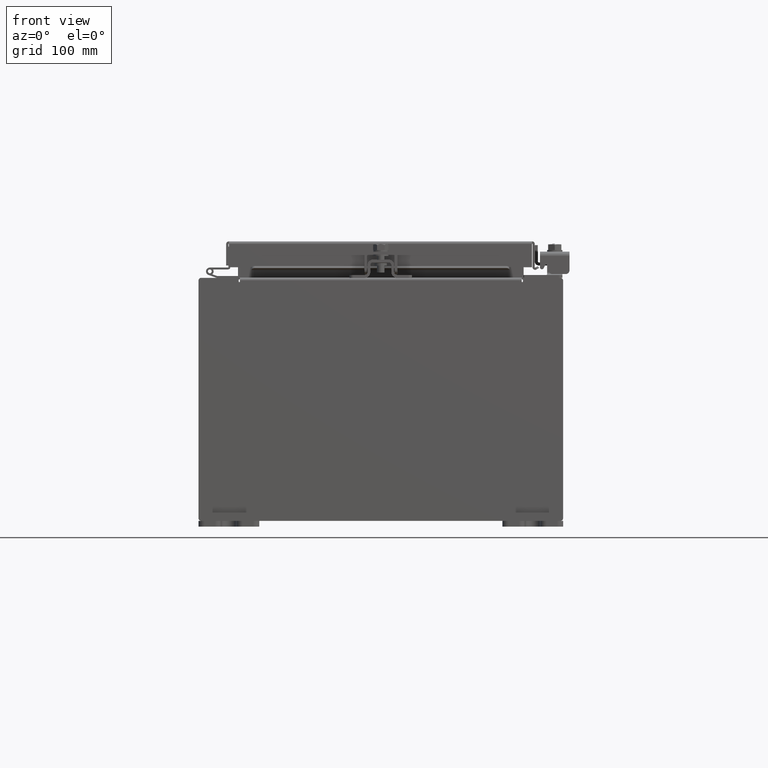
[diagram: clean part render]
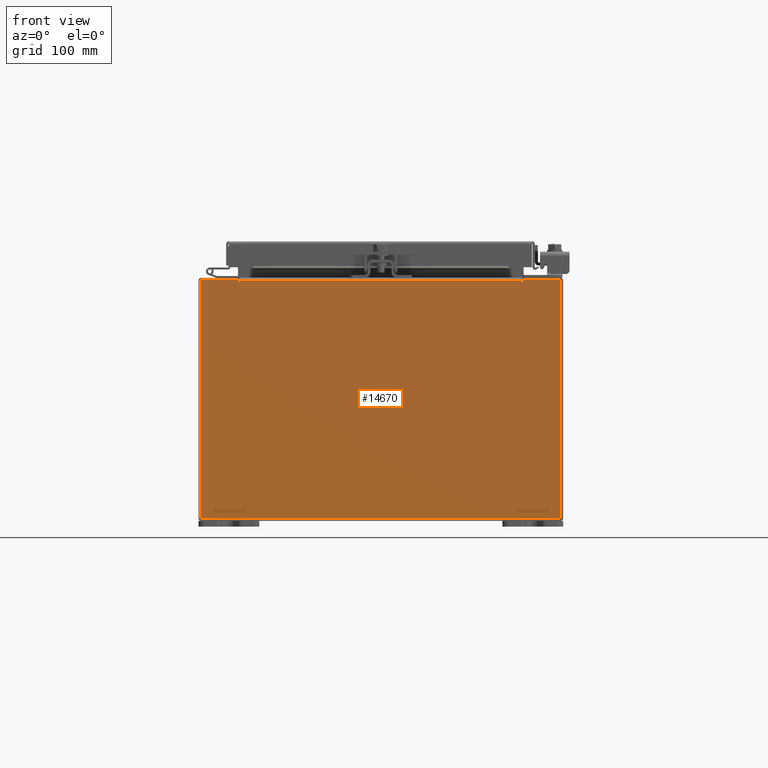
[diagram: same view with one face highlighted and labeled with its STEP entity id]
A machine part, front view. The second image highlights one B-rep face of the part: STEP entity #14670.
In plain terms, the highlighted planar face has unit normal (-0, 1, -0).
Its self-contained STEP definition (entity closure, byte-faithful):
#280 = CIRCLE ( 'NONE', #15276, 0.01867500000000003900 ) ;
#332 = CARTESIAN_POINT ( 'NONE',  ( 4.655875000000002700, 0.0000000000000000000, 3.874949999999999200 ) ) ;
#836 = EDGE_CURVE ( 'NONE', #10174, #17882, #24405, .T. ) ;
#1635 = VERTEX_POINT ( 'NONE', #9276 ) ;
#1908 = CARTESIAN_POINT ( 'NONE',  ( 4.674549999999960900, -0.0000000000000000000, -5.072556122654668400E-014 ) ) ;
#2111 = VERTEX_POINT ( 'NONE', #19707 ) ;
#2322 = DIRECTION ( 'NONE',  ( 0.0000000000000000000, 0.0000000000000000000, -1.000000000000000000 ) ) ;
#2680 = VECTOR ( 'NONE', #24658, 39.37007874015748100 ) ;
#2798 = CARTESIAN_POINT ( 'NONE',  ( 5.925300000000002700, 0.0000000000000000000, -3.925300000000000500 ) ) ;
#3118 = LINE ( 'NONE', #6267, #18511 ) ;
#3466 = LINE ( 'NONE', #15335, #24220 ) ;
#3796 = AXIS2_PLACEMENT_3D ( 'NONE', #332, #14362, #2322 ) ;
#4779 = LINE ( 'NONE', #23692, #9491 ) ;
#5107 = DIRECTION ( 'NONE',  ( -0.0000000000000000000, 1.000000000000000000, -0.0000000000000000000 ) ) ;
#5214 = LINE ( 'NONE', #20400, #15872 ) ;
#6119 = DIRECTION ( 'NONE',  ( -1.000000000000000000, -0.0000000000000000000, -0.0000000000000000000 ) ) ;
#6207 = VERTEX_POINT ( 'NONE', #15091 ) ;
#6267 = CARTESIAN_POINT ( 'NONE',  ( -4.637199999999998200, -1.707404996040164500E-016, 3.912299999999999200 ) ) ;
#6718 = CARTESIAN_POINT ( 'NONE',  ( 4.674550000000002600, 0.0000000000000000000, 3.874949999999999200 ) ) ;
#7297 = CARTESIAN_POINT ( 'NONE',  ( 0.0000000000000000000, 0.0000000000000000000, 0.0000000000000000000 ) ) ;
#7412 = ORIENTED_EDGE ( 'NONE', *, *, #16401, .F. ) ;
#7417 = CARTESIAN_POINT ( 'NONE',  ( 4.637200000000002700, 0.0000000000000000000, 3.874949999999999200 ) ) ;
#8022 = EDGE_CURVE ( 'NONE', #10174, #17955, #5214, .T. ) ;
#8035 = LINE ( 'NONE', #8555, #2680 ) ;
#8084 = ORIENTED_EDGE ( 'NONE', *, *, #23309, .F. ) ;
#8106 = EDGE_CURVE ( 'NONE', #17955, #15526, #8035, .T. ) ;
#8264 = CARTESIAN_POINT ( 'NONE',  ( -5.925299999999998200, 0.0000000000000000000, -3.925300000000000500 ) ) ;
#8379 = DIRECTION ( 'NONE',  ( 1.000000000000000000, 0.0000000000000000000, 0.0000000000000000000 ) ) ;
#8555 = CARTESIAN_POINT ( 'NONE',  ( 5.925300000000002700, 0.0000000000000000000, 3.925299999999999100 ) ) ;
#8587 = CARTESIAN_POINT ( 'NONE',  ( -4.637199999999998200, -0.0000000000000000000, 3.874949999999999200 ) ) ;
#9031 = VECTOR ( 'NONE', #6119, 39.37007874015748100 ) ;
#9220 = EDGE_CURVE ( 'NONE', #18462, #23321, #23395, .T. ) ;
#9276 = CARTESIAN_POINT ( 'NONE',  ( 4.637200000000002700, 0.0000000000000000000, 3.912299999999999200 ) ) ;
#9309 = DIRECTION ( 'NONE',  ( 0.0000000000000000000, -0.0000000000000000000, -1.000000000000000000 ) ) ;
#9491 = VECTOR ( 'NONE', #17685, 39.37007874015748100 ) ;
#10120 = CARTESIAN_POINT ( 'NONE',  ( -5.925299999999998200, 0.0000000000000000000, 3.925299999999999100 ) ) ;
#10174 = VERTEX_POINT ( 'NONE', #12470 ) ;
#11089 = EDGE_LOOP ( 'NONE', ( #8084, #17659, #18256, #12009, #7412, #23385, #25913, #12862, #23203, #25112, #18652, #12466 ) ) ;
#11126 = EDGE_CURVE ( 'NONE', #18923, #6207, #280, .T. ) ;
#11275 = CARTESIAN_POINT ( 'NONE',  ( -5.925299999999998200, 0.0000000000000000000, 3.925299999999999100 ) ) ;
#12009 = ORIENTED_EDGE ( 'NONE', *, *, #23653, .T. ) ;
#12466 = ORIENTED_EDGE ( 'NONE', *, *, #9220, .T. ) ;
#12470 = CARTESIAN_POINT ( 'NONE',  ( 4.674550000000001800, 0.0000000000000000000, 3.925299999999999100 ) ) ;
#12741 = VECTOR ( 'NONE', #25347, 39.37007874015748100 ) ;
#12862 = ORIENTED_EDGE ( 'NONE', *, *, #8022, .T. ) ;
#13050 = VECTOR ( 'NONE', #17985, 39.37007874015748100 ) ;
#14032 = VERTEX_POINT ( 'NONE', #7417 ) ;
#14362 = DIRECTION ( 'NONE',  ( -0.0000000000000000000, 1.000000000000000000, -0.0000000000000000000 ) ) ;
#14562 = VECTOR ( 'NONE', #23638, 39.37007874015748100 ) ;
#14670 = ADVANCED_FACE ( 'NONE', ( #15226 ), #17302, .F. ) ;
#15091 = CARTESIAN_POINT ( 'NONE',  ( -4.674549999999998200, 0.0000000000000000000, 3.874949999999999200 ) ) ;
#15226 = FACE_OUTER_BOUND ( 'NONE', #11089, .T. ) ;
#15276 = AXIS2_PLACEMENT_3D ( 'NONE', #17120, #5107, #19137 ) ;
#15289 = CARTESIAN_POINT ( 'NONE',  ( -5.925299999999998200, 0.0000000000000000000, 3.925299999999999100 ) ) ;
#15335 = CARTESIAN_POINT ( 'NONE',  ( -4.674549999999998200, -0.0000000000000000000, 0.0000000000000000000 ) ) ;
#15341 = EDGE_CURVE ( 'NONE', #2111, #18923, #16746, .T. ) ;
#15526 = VERTEX_POINT ( 'NONE', #2798 ) ;
#15684 = CARTESIAN_POINT ( 'NONE',  ( -4.637199999999998200, -0.0000000000000000000, 0.0000000000000000000 ) ) ;
#15872 = VECTOR ( 'NONE', #8379, 39.37007874015748100 ) ;
#16401 = EDGE_CURVE ( 'NONE', #14032, #1635, #4779, .T. ) ;
#16746 = LINE ( 'NONE', #15684, #14562 ) ;
#16982 = CARTESIAN_POINT ( 'NONE',  ( 5.925300000000002700, 0.0000000000000000000, 3.925299999999999100 ) ) ;
#17120 = CARTESIAN_POINT ( 'NONE',  ( -4.655874999999998200, 0.0000000000000000000, 3.874949999999999200 ) ) ;
#17302 = PLANE ( 'NONE',  #24970 ) ;
#17475 = LINE ( 'NONE', #11275, #12741 ) ;
#17659 = ORIENTED_EDGE ( 'NONE', *, *, #11126, .F. ) ;
#17685 = DIRECTION ( 'NONE',  ( 0.0000000000000000000, 0.0000000000000000000, 1.000000000000000000 ) ) ;
#17716 = EDGE_CURVE ( 'NONE', #15526, #24153, #19700, .T. ) ;
#17882 = VERTEX_POINT ( 'NONE', #6718 ) ;
#17955 = VERTEX_POINT ( 'NONE', #16982 ) ;
#17985 = DIRECTION ( 'NONE',  ( -1.085143195100001200E-014, 0.0000000000000000000, -1.000000000000000000 ) ) ;
#18256 = ORIENTED_EDGE ( 'NONE', *, *, #15341, .F. ) ;
#18304 = DIRECTION ( 'NONE',  ( 1.000000000000000000, 0.0000000000000000000, 0.0000000000000000000 ) ) ;
#18444 = EDGE_CURVE ( 'NONE', #24153, #18462, #17475, .T. ) ;
#18462 = VERTEX_POINT ( 'NONE', #15289 ) ;
#18511 = VECTOR ( 'NONE', #18304, 39.37007874015748100 ) ;
#18652 = ORIENTED_EDGE ( 'NONE', *, *, #18444, .T. ) ;
#18923 = VERTEX_POINT ( 'NONE', #8587 ) ;
#19137 = DIRECTION ( 'NONE',  ( 0.0000000000000000000, 0.0000000000000000000, -1.000000000000000000 ) ) ;
#19300 = EDGE_CURVE ( 'NONE', #17882, #14032, #20280, .T. ) ;
#19700 = LINE ( 'NONE', #20159, #9031 ) ;
#19707 = CARTESIAN_POINT ( 'NONE',  ( -4.637199999999998200, -1.707404996040164500E-016, 3.912299999999999200 ) ) ;
#20159 = CARTESIAN_POINT ( 'NONE',  ( -5.925299999999998200, 0.0000000000000000000, -3.925300000000000500 ) ) ;
#20280 = CIRCLE ( 'NONE', #3796, 0.01867500000000003900 ) ;
#20400 = CARTESIAN_POINT ( 'NONE',  ( -5.925299999999998200, 0.0000000000000000000, 3.925299999999999100 ) ) ;
#21342 = DIRECTION ( 'NONE',  ( 0.0000000000000000000, -1.000000000000000000, 0.0000000000000000000 ) ) ;
#21398 = DIRECTION ( 'NONE',  ( 0.0000000000000000000, 0.0000000000000000000, 1.000000000000000000 ) ) ;
#22737 = VECTOR ( 'NONE', #24200, 39.37007874015748100 ) ;
#23203 = ORIENTED_EDGE ( 'NONE', *, *, #8106, .T. ) ;
#23309 = EDGE_CURVE ( 'NONE', #6207, #23321, #3466, .T. ) ;
#23321 = VERTEX_POINT ( 'NONE', #23437 ) ;
#23385 = ORIENTED_EDGE ( 'NONE', *, *, #19300, .F. ) ;
#23395 = LINE ( 'NONE', #10120, #22737 ) ;
#23437 = CARTESIAN_POINT ( 'NONE',  ( -4.674549999999998200, 0.0000000000000000000, 3.925299999999999100 ) ) ;
#23638 = DIRECTION ( 'NONE',  ( 0.0000000000000000000, 0.0000000000000000000, -1.000000000000000000 ) ) ;
#23653 = EDGE_CURVE ( 'NONE', #2111, #1635, #3118, .T. ) ;
#23692 = CARTESIAN_POINT ( 'NONE',  ( 4.637200000000002700, 0.0000000000000000000, 0.0000000000000000000 ) ) ;
#24153 = VERTEX_POINT ( 'NONE', #8264 ) ;
#24200 = DIRECTION ( 'NONE',  ( 1.000000000000000000, 0.0000000000000000000, 0.0000000000000000000 ) ) ;
#24220 = VECTOR ( 'NONE', #21398, 39.37007874015748100 ) ;
#24405 = LINE ( 'NONE', #1908, #13050 ) ;
#24658 = DIRECTION ( 'NONE',  ( 0.0000000000000000000, 0.0000000000000000000, -1.000000000000000000 ) ) ;
#24970 = AXIS2_PLACEMENT_3D ( 'NONE', #7297, #21342, #9309 ) ;
#25112 = ORIENTED_EDGE ( 'NONE', *, *, #17716, .T. ) ;
#25347 = DIRECTION ( 'NONE',  ( -0.0000000000000000000, -0.0000000000000000000, 1.000000000000000000 ) ) ;
#25913 = ORIENTED_EDGE ( 'NONE', *, *, #836, .F. ) ;